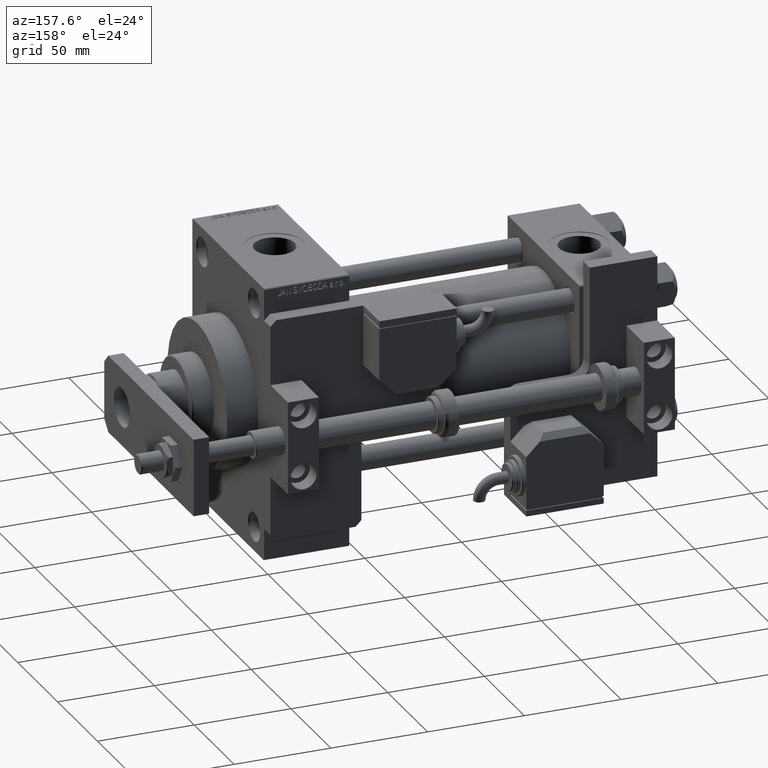
[diagram: clean part render]
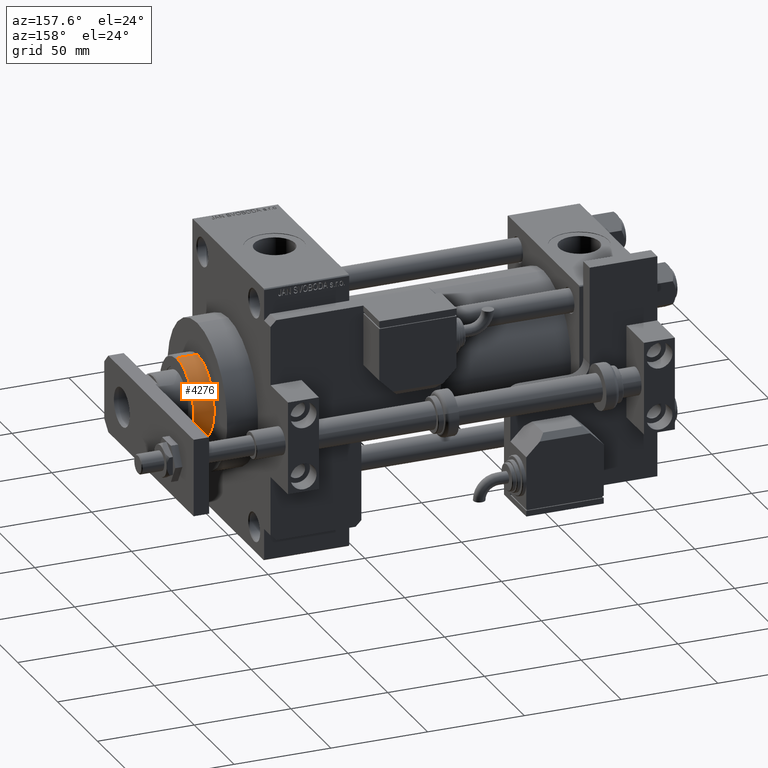
[diagram: same view with one face highlighted and labeled with its STEP entity id]
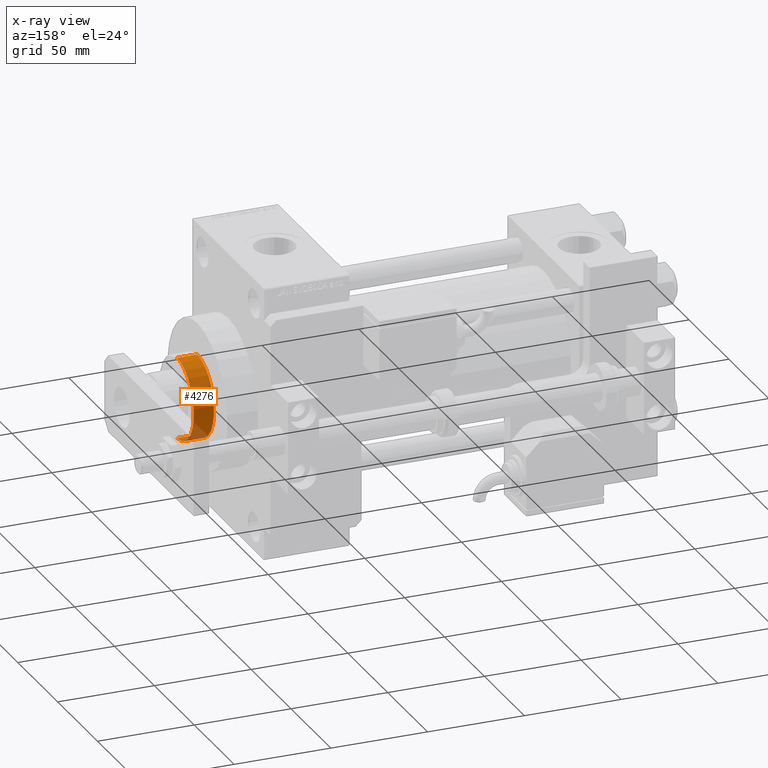
[diagram: x-ray of the same camera — body ghosted, the highlighted face saturated]
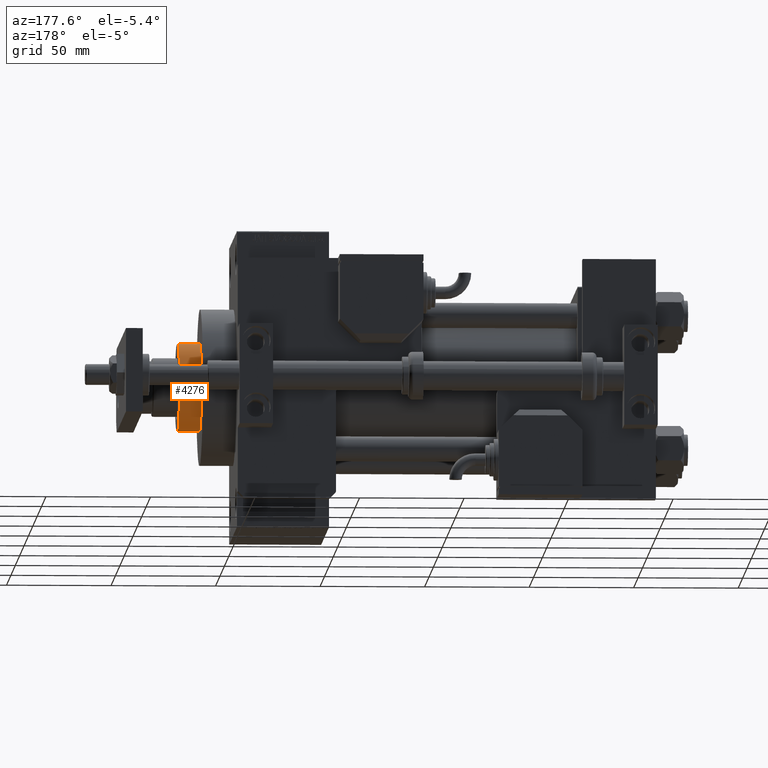
[diagram: same view with one face highlighted and labeled with its STEP entity id]
A machine part, auxiliary view. The second image highlights one B-rep face of the part: STEP entity #4276.
The next image is the same camera in x-ray: the body ghosted, the highlighted face saturated — about 12% of this face is hidden behind the body in this view.
A second angle (auxiliary view) of the same face is appended — the face is thin or edge-on in the first view.
In plain terms, the highlighted cylindrical surface (partial cylindrical patch) has radius 21 mm, axis along (-1, -0, 0).
Its self-contained STEP definition (entity closure, byte-faithful):
#2852 = ORIENTED_EDGE ( 'NONE', *, *, #8636, .F. ) ;
#3034 = DIRECTION ( 'NONE',  ( -0.000000000000000000, -0.000000000000000000, -1.000000000000000000 ) ) ;
#4276 = ADVANCED_FACE ( 'NONE', ( #15465 ), #7664, .T. ) ;
#5894 = CARTESIAN_POINT ( 'NONE',  ( -21.00000000000000000, 0.000000000000000000, 54.26000000000000512 ) ) ;
#5936 = CARTESIAN_POINT ( 'NONE',  ( 0.000000000000000000, 0.000000000000000000, 53.76000000000001933 ) ) ;
#7664 = CYLINDRICAL_SURFACE ( 'NONE', #51441, 21.00000000000000000 ) ;
#7914 = DIRECTION ( 'NONE',  ( 1.000000000000000000, 0.000000000000000000, 0.000000000000000000 ) ) ;
#8636 = EDGE_CURVE ( 'NONE', #11470, #40275, #10363, .T. ) ;
#9725 = VECTOR ( 'NONE', #48436, 1000.000000000000000 ) ;
#10363 = LINE ( 'NONE', #5894, #9725 ) ;
#11470 = VERTEX_POINT ( 'NONE', #23227 ) ;
#14860 = ORIENTED_EDGE ( 'NONE', *, *, #42915, .T. ) ;
#15465 = FACE_OUTER_BOUND ( 'NONE', #16470, .T. ) ;
#16470 = EDGE_LOOP ( 'NONE', ( #17290, #54286, #14860, #2852 ) ) ;
#16518 = AXIS2_PLACEMENT_3D ( 'NONE', #20444, #37383, #7914 ) ;
#17290 = ORIENTED_EDGE ( 'NONE', *, *, #52139, .T. ) ;
#20147 = EDGE_CURVE ( 'NONE', #34252, #30894, #32529, .T. ) ;
#20444 = CARTESIAN_POINT ( 'NONE',  ( 0.000000000000000000, 0.000000000000000000, 43.25999999999999801 ) ) ;
#23227 = CARTESIAN_POINT ( 'NONE',  ( -21.00000000000000000, 0.000000000000000000, 53.76000000000001933 ) ) ;
#25671 = CARTESIAN_POINT ( 'NONE',  ( -21.00000000000000000, 0.000000000000000000, 43.25999999999999801 ) ) ;
#28777 = DIRECTION ( 'NONE',  ( -0.000000000000000000, -0.000000000000000000, -1.000000000000000000 ) ) ;
#29627 = VECTOR ( 'NONE', #3034, 1000.000000000000000 ) ;
#30894 = VERTEX_POINT ( 'NONE', #31702 ) ;
#31702 = CARTESIAN_POINT ( 'NONE',  ( 21.00000000000000000, 2.571758278209441661E-15, 43.25999999999999801 ) ) ;
#32529 = LINE ( 'NONE', #48955, #29627 ) ;
#34252 = VERTEX_POINT ( 'NONE', #48843 ) ;
#35956 = DIRECTION ( 'NONE',  ( 1.000000000000000000, 0.000000000000000000, 0.000000000000000000 ) ) ;
#37383 = DIRECTION ( 'NONE',  ( 0.000000000000000000, 0.000000000000000000, 1.000000000000000000 ) ) ;
#38217 = AXIS2_PLACEMENT_3D ( 'NONE', #5936, #48480, #35956 ) ;
#40275 = VERTEX_POINT ( 'NONE', #25671 ) ;
#42915 = EDGE_CURVE ( 'NONE', #30894, #40275, #53800, .T. ) ;
#45749 = DIRECTION ( 'NONE',  ( -1.000000000000000000, 0.000000000000000000, 0.000000000000000000 ) ) ;
#48436 = DIRECTION ( 'NONE',  ( -0.000000000000000000, -0.000000000000000000, -1.000000000000000000 ) ) ;
#48480 = DIRECTION ( 'NONE',  ( 0.000000000000000000, 0.000000000000000000, -1.000000000000000000 ) ) ;
#48843 = CARTESIAN_POINT ( 'NONE',  ( 21.00000000000000000, 2.571758278209441661E-15, 53.76000000000001933 ) ) ;
#48955 = CARTESIAN_POINT ( 'NONE',  ( 21.00000000000000000, 2.571758278209441661E-15, 54.26000000000000512 ) ) ;
#49931 = CARTESIAN_POINT ( 'NONE',  ( 0.000000000000000000, 0.000000000000000000, 54.26000000000000512 ) ) ;
#50525 = CIRCLE ( 'NONE', #38217, 21.00000000000000000 ) ;
#51441 = AXIS2_PLACEMENT_3D ( 'NONE', #49931, #28777, #45749 ) ;
#52139 = EDGE_CURVE ( 'NONE', #11470, #34252, #50525, .T. ) ;
#53800 = CIRCLE ( 'NONE', #16518, 21.00000000000000000 ) ;
#54286 = ORIENTED_EDGE ( 'NONE', *, *, #20147, .T. ) ;